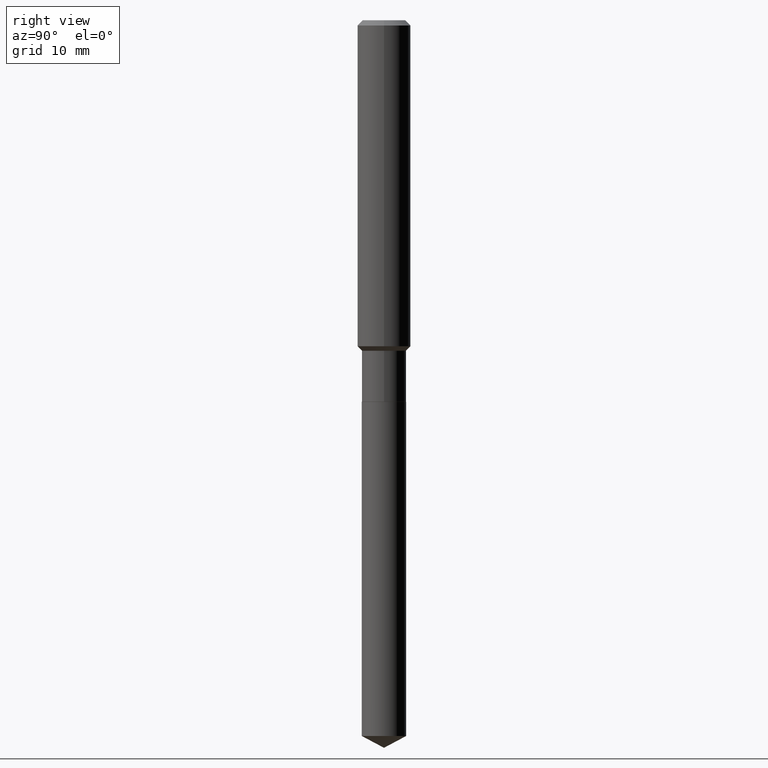
[diagram: clean part render]
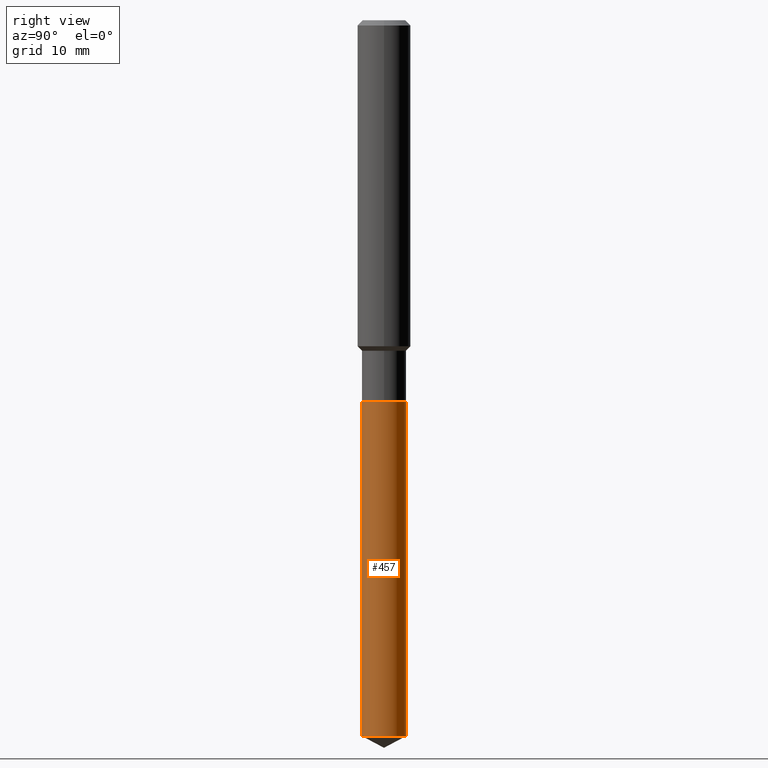
[diagram: same view with one face highlighted and labeled with its STEP entity id]
A machine part, right view. The second image highlights one B-rep face of the part: STEP entity #457.
In plain terms, the highlighted cylindrical surface (edge-blend (fillet) strip) has radius 2.5006 mm, axis along (-0, 0, 1).
Its self-contained STEP definition (entity closure, byte-faithful):
#2 = VERTEX_POINT ( 'NONE', #74 ) ;
#17 = VERTEX_POINT ( 'NONE', #84 ) ;
#22 = EDGE_CURVE ( 'NONE', #17, #413, #155, .T. ) ;
#49 = ORIENTED_EDGE ( 'NONE', *, *, #156, .F. ) ;
#58 = EDGE_CURVE ( 'NONE', #2, #98, #130, .T. ) ;
#62 = DIRECTION ( 'NONE',  ( -2.445509088617800403E-29, 3.491423652106837223E-15, 1.000000000000000000 ) ) ;
#74 = CARTESIAN_POINT ( 'NONE',  ( -6.874726756181350545E-16, -0.09845000000001107032, -3.175953206452927002 ) ) ;
#84 = CARTESIAN_POINT ( 'NONE',  ( 6.995293233558961091E-16, 0.09844999999998889362, -3.175953206452928335 ) ) ;
#88 = CARTESIAN_POINT ( 'NONE',  ( -6.874726756181714407E-16, -0.09845000000000590779, -1.692899999999999849 ) ) ;
#91 = DIRECTION ( 'NONE',  ( -6.982962677686265922E-15, -1.000000000000000000, 2.774858297271979165E-15 ) ) ;
#96 = DIRECTION ( 'NONE',  ( -6.982962677686265922E-15, -1.000000000000000000, 5.549716594543958330E-15 ) ) ;
#98 = VERTEX_POINT ( 'NONE', #88 ) ;
#122 = CIRCLE ( 'NONE', #391, 0.09844999999999999585 ) ;
#128 = FACE_OUTER_BOUND ( 'NONE', #275, .T. ) ;
#130 = LINE ( 'NONE', #286, #401 ) ;
#132 = CIRCLE ( 'NONE', #202, 0.09844999999999999585 ) ;
#155 = LINE ( 'NONE', #314, #473 ) ;
#156 = EDGE_CURVE ( 'NONE', #98, #413, #122, .T. ) ;
#167 = CYLINDRICAL_SURFACE ( 'NONE', #172, 0.09844999999999999585 ) ;
#172 = AXIS2_PLACEMENT_3D ( 'NONE', #323, #298, #395 ) ;
#183 = EDGE_CURVE ( 'NONE', #2, #17, #132, .T. ) ;
#202 = AXIS2_PLACEMENT_3D ( 'NONE', #299, #448, #96 ) ;
#265 = ORIENTED_EDGE ( 'NONE', *, *, #183, .T. ) ;
#275 = EDGE_LOOP ( 'NONE', ( #265, #423, #49, #306 ) ) ;
#280 = DIRECTION ( 'NONE',  ( -2.445509088617800403E-29, 3.491423652106837223E-15, 1.000000000000000000 ) ) ;
#286 = CARTESIAN_POINT ( 'NONE',  ( -6.874726756181714407E-16, -0.09845000000000590779, -1.692899999999999849 ) ) ;
#298 = DIRECTION ( 'NONE',  ( -2.445509088617800403E-29, 3.491423652106837223E-15, 1.000000000000000000 ) ) ;
#299 = CARTESIAN_POINT ( 'NONE',  ( 7.766754237275222935E-29, -1.108869580087019846E-14, -3.175953206452927891 ) ) ;
#306 = ORIENTED_EDGE ( 'NONE', *, *, #58, .F. ) ;
#314 = CARTESIAN_POINT ( 'NONE',  ( 6.995293233558598215E-16, 0.09844999999999408391, -1.692900000000000293 ) ) ;
#323 = CARTESIAN_POINT ( 'NONE',  ( 4.139934141990818357E-29, -5.910728758527561864E-15, -1.692900000000000071 ) ) ;
#327 = DIRECTION ( 'NONE',  ( -2.445509088617800403E-29, 3.491423652106837223E-15, 1.000000000000000000 ) ) ;
#369 = CARTESIAN_POINT ( 'NONE',  ( 4.139934141990818357E-29, -5.910728758527561864E-15, -1.692900000000000071 ) ) ;
#391 = AXIS2_PLACEMENT_3D ( 'NONE', #369, #327, #91 ) ;
#395 = DIRECTION ( 'NONE',  ( -6.982962677686265922E-15, -1.000000000000000000, 2.774858297271979165E-15 ) ) ;
#401 = VECTOR ( 'NONE', #62, 39.37007874015748143 ) ;
#413 = VERTEX_POINT ( 'NONE', #425 ) ;
#423 = ORIENTED_EDGE ( 'NONE', *, *, #22, .T. ) ;
#425 = CARTESIAN_POINT ( 'NONE',  ( 6.995293233558962077E-16, 0.09844999999999408391, -1.692900000000000293 ) ) ;
#448 = DIRECTION ( 'NONE',  ( -2.445509088617800403E-29, 3.491423652106837223E-15, 1.000000000000000000 ) ) ;
#457 = ADVANCED_FACE ( 'NONE', ( #128 ), #167, .T. ) ;
#473 = VECTOR ( 'NONE', #280, 39.37007874015748143 ) ;